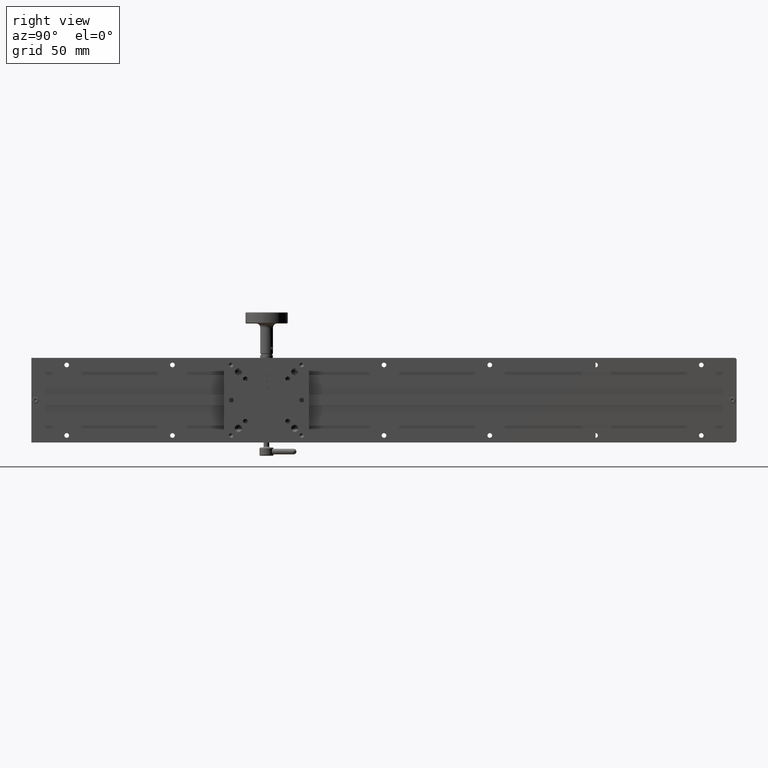
[diagram: clean part render]
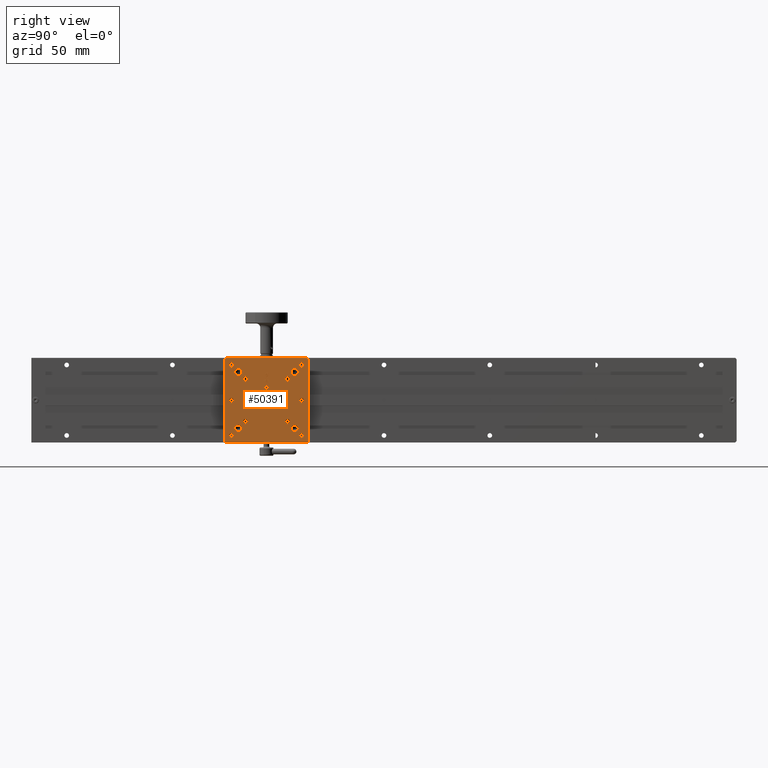
[diagram: same view with one face highlighted and labeled with its STEP entity id]
A machine part, right view. The second image highlights one B-rep face of the part: STEP entity #50391.
In plain terms, the highlighted planar face has unit normal (-1, 0, 0).
Its self-contained STEP definition (entity closure, byte-faithful):
#332 = VERTEX_POINT ( 'NONE', #51043 ) ;
#351 = ORIENTED_EDGE ( 'NONE', *, *, #77192, .F. ) ;
#695 = CIRCLE ( 'NONE', #92759, 2.500000000000002220 ) ;
#1653 = CARTESIAN_POINT ( 'NONE',  ( 60.00000000000055422, 189.6851296135902771, -45.00000000000157740 ) ) ;
#2625 = CARTESIAN_POINT ( 'NONE',  ( 60.00000000000054001, 199.6851296135903624, -55.00000000000152056 ) ) ;
#2754 = EDGE_CURVE ( 'NONE', #47472, #39695, #82951, .T. ) ;
#3322 = ORIENTED_EDGE ( 'NONE', *, *, #55227, .F. ) ;
#3337 = DIRECTION ( 'NONE',  ( -2.775557561562888984E-15, -1.000000000000000000, -5.551115123125777969E-15 ) ) ;
#3385 = DIRECTION ( 'NONE',  ( 0.000000000000000000, -1.000000000000000000, -4.205390244792298683E-15 ) ) ;
#4104 = CARTESIAN_POINT ( 'NONE',  ( 60.00000000000070344, 204.6851296135900213, -1.000000000001465050 ) ) ;
#4270 = EDGE_LOOP ( 'NONE', ( #84023, #80054, #75383, #46430, #78126, #21852, #28564, #5802 ) ) ;
#4526 = ORIENTED_EDGE ( 'NONE', *, *, #31403, .F. ) ;
#4704 = CARTESIAN_POINT ( 'NONE',  ( 60.00000000000054001, 151.3351296135901976, -30.00000000000180478 ) ) ;
#4714 = CARTESIAN_POINT ( 'NONE',  ( 60.00000000000054001, 199.6851296135903624, -55.00000000000152056 ) ) ;
#4756 = FACE_BOUND ( 'NONE', #33052, .T. ) ;
#4821 = EDGE_LOOP ( 'NONE', ( #52045, #21338 ) ) ;
#5269 = DIRECTION ( 'NONE',  ( 0.000000000000000000, -1.000000000000000000, -4.205390244792298683E-15 ) ) ;
#5311 = FACE_BOUND ( 'NONE', #23181, .T. ) ;
#5344 = CARTESIAN_POINT ( 'NONE',  ( 60.00000000000060396, 159.6851296135901066, -15.00000000000176748 ) ) ;
#5469 = CARTESIAN_POINT ( 'NONE',  ( 60.00000000000051159, 161.3351296135902828, -45.00000000000174083 ) ) ;
#5666 = DIRECTION ( 'NONE',  ( 1.000000000000000000, -1.443289932012660312E-15, -2.877341228894477022E-15 ) ) ;
#5726 = CARTESIAN_POINT ( 'NONE',  ( 60.00000000000059686, 152.1851296135900782, -10.00000000000181544 ) ) ;
#5802 = ORIENTED_EDGE ( 'NONE', *, *, #65491, .T. ) ;
#6255 = CARTESIAN_POINT ( 'NONE',  ( 60.00000000000061817, 149.6851296135900498, -5.000000000001826095 ) ) ;
#6748 = DIRECTION ( 'NONE',  ( 1.000000000000000000, -1.443289932012660312E-15, -2.877341228894477022E-15 ) ) ;
#7025 = VERTEX_POINT ( 'NONE', #74088 ) ;
#7111 = VECTOR ( 'NONE', #70907, 1000.000000000000000 ) ;
#7700 = DIRECTION ( 'NONE',  ( 0.000000000000000000, -1.000000000000000000, -4.205390244792298683E-15 ) ) ;
#8292 = DIRECTION ( 'NONE',  ( 0.000000000000000000, -1.000000000000000000, -5.551115123125777969E-15 ) ) ;
#8397 = CARTESIAN_POINT ( 'NONE',  ( 60.00000000000061817, 149.6851296135900498, -5.000000000001826095 ) ) ;
#8552 = CIRCLE ( 'NONE', #93511, 1.649999999999984812 ) ;
#8583 = AXIS2_PLACEMENT_3D ( 'NONE', #29400, #28859, #105854 ) ;
#8886 = EDGE_CURVE ( 'NONE', #28872, #108513, #72330, .T. ) ;
#9121 = CARTESIAN_POINT ( 'NONE',  ( 60.00000000000061817, 201.3351296135901691, -30.00000000000149214 ) ) ;
#9169 = EDGE_CURVE ( 'NONE', #27613, #51010, #86493, .T. ) ;
#9524 = CARTESIAN_POINT ( 'NONE',  ( 60.00000000000054001, 198.0351296135903851, -55.00000000000152767 ) ) ;
#9666 = LINE ( 'NONE', #77256, #10219 ) ;
#9698 = EDGE_LOOP ( 'NONE', ( #45944, #21550 ) ) ;
#10135 = EDGE_CURVE ( 'NONE', #26848, #79622, #47830, .T. ) ;
#10178 = VERTEX_POINT ( 'NONE', #39088 ) ;
#10191 = CARTESIAN_POINT ( 'NONE',  ( 60.00000000000054001, 204.6851296135903624, -59.00000000000149925 ) ) ;
#10219 = VECTOR ( 'NONE', #27365, 1000.000000000000000 ) ;
#10871 = DIRECTION ( 'NONE',  ( 1.000000000000000000, -1.443289932012660312E-15, -2.877341228894477022E-15 ) ) ;
#11073 = CARTESIAN_POINT ( 'NONE',  ( 60.00000000000045475, 145.6851296135903624, -60.00000000000184741 ) ) ;
#11079 = VERTEX_POINT ( 'NONE', #55498 ) ;
#11288 = CIRCLE ( 'NONE', #62616, 1.649999999999984812 ) ;
#11289 = VERTEX_POINT ( 'NONE', #103874 ) ;
#11560 = CARTESIAN_POINT ( 'NONE',  ( 60.00000000000064659, 191.3351296135900839, -15.00000000000155076 ) ) ;
#11866 = CIRCLE ( 'NONE', #73808, 1.649999999999984812 ) ;
#12521 = FACE_BOUND ( 'NONE', #33310, .T. ) ;
#12957 = AXIS2_PLACEMENT_3D ( 'NONE', #77608, #60971, #3337 ) ;
#13323 = DIRECTION ( 'NONE',  ( -2.775557561562888984E-15, -1.000000000000000000, -5.551115123125777969E-15 ) ) ;
#13701 = CIRCLE ( 'NONE', #31398, 2.500000000000002220 ) ;
#14086 = CARTESIAN_POINT ( 'NONE',  ( 60.00000000000066080, 194.6851296135900782, -10.00000000000155254 ) ) ;
#14139 = DIRECTION ( 'NONE',  ( 1.000000000000000000, -1.443289932012660312E-15, -2.877341228894477022E-15 ) ) ;
#14167 = PLANE ( 'NONE',  #107376 ) ;
#14186 = VECTOR ( 'NONE', #72426, 1000.000000000000000 ) ;
#14561 = VERTEX_POINT ( 'NONE', #88492 ) ;
#14645 = ORIENTED_EDGE ( 'NONE', *, *, #10135, .F. ) ;
#14692 = AXIS2_PLACEMENT_3D ( 'NONE', #21059, #55406, #72594 ) ;
#14763 = VECTOR ( 'NONE', #20161, 1000.000000000000000 ) ;
#15457 = DIRECTION ( 'NONE',  ( 1.000000000000000000, -1.443289932012660312E-15, -2.877341228894477022E-15 ) ) ;
#15689 = LINE ( 'NONE', #11073, #96466 ) ;
#15742 = EDGE_CURVE ( 'NONE', #79622, #26848, #30081, .T. ) ;
#16573 = CIRCLE ( 'NONE', #71402, 2.500000000000002220 ) ;
#17400 = DIRECTION ( 'NONE',  ( 3.055147592883359968E-15, 0.7071067811865481278, 0.7071067811865470176 ) ) ;
#17484 = CARTESIAN_POINT ( 'NONE',  ( 60.00000000000061817, 199.6851296135901919, -30.00000000000151701 ) ) ;
#17516 = EDGE_CURVE ( 'NONE', #80931, #52241, #105142, .T. ) ;
#17589 = CARTESIAN_POINT ( 'NONE',  ( 60.00000000000061817, 174.6851296135901066, -16.50000000000167333 ) ) ;
#17689 = DIRECTION ( 'NONE',  ( 1.000000000000000000, -1.443289932012660312E-15, -2.877341228894477022E-15 ) ) ;
#18004 = AXIS2_PLACEMENT_3D ( 'NONE', #2625, #79064, #36413 ) ;
#18403 = VECTOR ( 'NONE', #44803, 1000.000000000000000 ) ;
#18541 = DIRECTION ( 'NONE',  ( 1.000000000000000000, -1.443289932012660312E-15, -2.877341228894477022E-15 ) ) ;
#19169 = CARTESIAN_POINT ( 'NONE',  ( 60.00000000000061817, 199.6851296135901919, -30.00000000000151701 ) ) ;
#19368 = CARTESIAN_POINT ( 'NONE',  ( 60.00000000000063238, 173.4351296135900782, -12.00000000000167866 ) ) ;
#19602 = CARTESIAN_POINT ( 'NONE',  ( 60.00000000000060396, 154.6851296135900782, -10.00000000000179945 ) ) ;
#19799 = VERTEX_POINT ( 'NONE', #71280 ) ;
#20118 = DIRECTION ( 'NONE',  ( 0.000000000000000000, -1.000000000000000000, -5.551115123125777969E-15 ) ) ;
#20161 = DIRECTION ( 'NONE',  ( 1.014027396594448134E-15, -0.7071067811865543451, 0.7071067811865406894 ) ) ;
#20229 = ORIENTED_EDGE ( 'NONE', *, *, #94822, .F. ) ;
#20355 = VERTEX_POINT ( 'NONE', #31195 ) ;
#20458 = LINE ( 'NONE', #55350, #7111 ) ;
#20806 = FACE_BOUND ( 'NONE', #84547, .T. ) ;
#20939 = DIRECTION ( 'NONE',  ( 1.000000000000000000, -1.443289932012660312E-15, -2.877341228894477022E-15 ) ) ;
#21013 = ORIENTED_EDGE ( 'NONE', *, *, #105586, .F. ) ;
#21059 = CARTESIAN_POINT ( 'NONE',  ( 60.00000000000046896, 149.6851296135903340, -55.00000000000182609 ) ) ;
#21160 = EDGE_CURVE ( 'NONE', #332, #11079, #25539, .T. ) ;
#21338 = ORIENTED_EDGE ( 'NONE', *, *, #43293, .F. ) ;
#21400 = CARTESIAN_POINT ( 'NONE',  ( 60.00000000000060396, 161.3351296135900839, -15.00000000000173728 ) ) ;
#21550 = ORIENTED_EDGE ( 'NONE', *, *, #48062, .F. ) ;
#21613 = CARTESIAN_POINT ( 'NONE',  ( 60.00000000000061817, 151.3351296135900270, -5.000000000001796785 ) ) ;
#21852 = ORIENTED_EDGE ( 'NONE', *, *, #47295, .T. ) ;
#22305 = VERTEX_POINT ( 'NONE', #21400 ) ;
#22454 = EDGE_CURVE ( 'NONE', #22305, #11289, #27271, .T. ) ;
#22456 = FACE_BOUND ( 'NONE', #45455, .T. ) ;
#22655 = AXIS2_PLACEMENT_3D ( 'NONE', #81566, #5666, #98719 ) ;
#22924 = DIRECTION ( 'NONE',  ( 1.000000000000000000, -1.443289932012660312E-15, -2.877341228894477022E-15 ) ) ;
#23001 = LINE ( 'NONE', #90618, #26105 ) ;
#23181 = EDGE_LOOP ( 'NONE', ( #51226, #89708 ) ) ;
#23273 = CARTESIAN_POINT ( 'NONE',  ( 60.00000000000062528, 144.6851296135900498, -1.000000000001870948 ) ) ;
#23449 = AXIS2_PLACEMENT_3D ( 'NONE', #77521, #94692, #8292 ) ;
#23585 = EDGE_CURVE ( 'NONE', #51544, #63528, #32734, .T. ) ;
#24172 = CARTESIAN_POINT ( 'NONE',  ( 60.00000000000046896, 151.3351296135903397, -55.00000000000179767 ) ) ;
#24742 = DIRECTION ( 'NONE',  ( 1.000000000000000000, -1.443289932012660312E-15, -2.877341228894477022E-15 ) ) ;
#25162 = EDGE_CURVE ( 'NONE', #29156, #63765, #98240, .T. ) ;
#25329 = EDGE_LOOP ( 'NONE', ( #93508, #58070 ) ) ;
#25539 = CIRCLE ( 'NONE', #108755, 1.250000000000001110 ) ;
#26105 = VECTOR ( 'NONE', #40179, 1000.000000000000000 ) ;
#26339 = ORIENTED_EDGE ( 'NONE', *, *, #22454, .F. ) ;
#26657 = EDGE_CURVE ( 'NONE', #19799, #70435, #42687, .T. ) ;
#26827 = EDGE_CURVE ( 'NONE', #65114, #10178, #49794, .T. ) ;
#26848 = VERTEX_POINT ( 'NONE', #70414 ) ;
#27271 = CIRCLE ( 'NONE', #36146, 1.649999999999984812 ) ;
#27365 = DIRECTION ( 'NONE',  ( -2.877341228894468739E-15, 6.171113181712969277E-15, -1.000000000000000000 ) ) ;
#27395 = DIRECTION ( 'NONE',  ( 0.000000000000000000, -1.000000000000000000, -6.308085367188447236E-15 ) ) ;
#27613 = VERTEX_POINT ( 'NONE', #76419 ) ;
#27759 = DIRECTION ( 'NONE',  ( 1.000000000000000000, -1.443289932012660312E-15, -2.877341228894477022E-15 ) ) ;
#27761 = CARTESIAN_POINT ( 'NONE',  ( 60.00000000000055422, 191.3351296135902544, -45.00000000000155609 ) ) ;
#28032 = CARTESIAN_POINT ( 'NONE',  ( 60.00000000000060396, 174.6851296135901350, -21.00000000000166978 ) ) ;
#28203 = CIRCLE ( 'NONE', #75996, 1.649999999999984812 ) ;
#28564 = ORIENTED_EDGE ( 'NONE', *, *, #79837, .F. ) ;
#28567 = DIRECTION ( 'NONE',  ( 1.000000000000000000, -1.443289932012660312E-15, -2.877341228894477022E-15 ) ) ;
#28859 = DIRECTION ( 'NONE',  ( 1.000000000000000000, -1.443289932012660312E-15, -2.877341228894477022E-15 ) ) ;
#28872 = VERTEX_POINT ( 'NONE', #93320 ) ;
#29156 = VERTEX_POINT ( 'NONE', #106551 ) ;
#29333 = DIRECTION ( 'NONE',  ( 1.000000000000000000, -1.443289932012660312E-15, -2.877341228894477022E-15 ) ) ;
#29400 = CARTESIAN_POINT ( 'NONE',  ( 60.00000000000068212, 199.6851296135900213, -5.000000000001513456 ) ) ;
#29584 = AXIS2_PLACEMENT_3D ( 'NONE', #81737, #28567, #88400 ) ;
#30081 = CIRCLE ( 'NONE', #47717, 1.649999999999984812 ) ;
#30232 = DIRECTION ( 'NONE',  ( 1.443289932012703503E-15, 1.000000000000000000, 6.171113181712962177E-15 ) ) ;
#30423 = VERTEX_POINT ( 'NONE', #9524 ) ;
#30776 = FACE_BOUND ( 'NONE', #4821, .T. ) ;
#30853 = CARTESIAN_POINT ( 'NONE',  ( 60.00000000000055422, 188.0351296135902714, -45.00000000000158451 ) ) ;
#31195 = CARTESIAN_POINT ( 'NONE',  ( 60.00000000000045475, 145.6851296135903624, -60.00000000000185452 ) ) ;
#31398 = AXIS2_PLACEMENT_3D ( 'NONE', #60615, #60060, #85580 ) ;
#31403 = EDGE_CURVE ( 'NONE', #11079, #332, #72978, .T. ) ;
#31764 = CIRCLE ( 'NONE', #47758, 1.649999999999984812 ) ;
#32734 = CIRCLE ( 'NONE', #87554, 1.649999999999984812 ) ;
#33052 = EDGE_LOOP ( 'NONE', ( #21013, #34305 ) ) ;
#33310 = EDGE_LOOP ( 'NONE', ( #36547, #76351 ) ) ;
#33465 = DIRECTION ( 'NONE',  ( 1.000000000000000000, -1.443289932012660312E-15, -2.877341228894477022E-15 ) ) ;
#33606 = EDGE_LOOP ( 'NONE', ( #351, #68047 ) ) ;
#34265 = CARTESIAN_POINT ( 'NONE',  ( 60.00000000000060396, 173.4351296135901350, -21.00000000000167688 ) ) ;
#34305 = ORIENTED_EDGE ( 'NONE', *, *, #45479, .F. ) ;
#34311 = CARTESIAN_POINT ( 'NONE',  ( 60.00000000000049027, 154.6851296135903340, -50.00000000000179767 ) ) ;
#34483 = EDGE_CURVE ( 'NONE', #63117, #20355, #15689, .T. ) ;
#34766 = VERTEX_POINT ( 'NONE', #19368 ) ;
#35702 = CARTESIAN_POINT ( 'NONE',  ( 60.00000000000071054, 203.6851296135900213, -1.491862189340054101E-12 ) ) ;
#36146 = AXIS2_PLACEMENT_3D ( 'NONE', #5344, #39133, #98411 ) ;
#36413 = DIRECTION ( 'NONE',  ( 0.000000000000000000, -1.000000000000000000, -4.205390244792298683E-15 ) ) ;
#36547 = ORIENTED_EDGE ( 'NONE', *, *, #25162, .F. ) ;
#36617 = CARTESIAN_POINT ( 'NONE',  ( 60.00000000000049027, 154.6851296135903340, -50.00000000000179767 ) ) ;
#36752 = DIRECTION ( 'NONE',  ( 1.000000000000000000, -1.443289932012660312E-15, -2.877341228894477022E-15 ) ) ;
#37135 = CARTESIAN_POINT ( 'NONE',  ( 60.00000000000065370, 192.1851296135900782, -10.00000000000156852 ) ) ;
#37795 = CIRCLE ( 'NONE', #60783, 1.250000000000001110 ) ;
#38551 = DIRECTION ( 'NONE',  ( -1.000000000000000000, 1.443289932012685753E-15, 2.877341228894477022E-15 ) ) ;
#38893 = VERTEX_POINT ( 'NONE', #100245 ) ;
#38976 = AXIS2_PLACEMENT_3D ( 'NONE', #19169, #10871, #72333 ) ;
#39088 = CARTESIAN_POINT ( 'NONE',  ( 60.00000000000049738, 157.1851296135903340, -50.00000000000176215 ) ) ;
#39133 = DIRECTION ( 'NONE',  ( 1.000000000000000000, -1.443289932012660312E-15, -2.877341228894477022E-15 ) ) ;
#39207 = AXIS2_PLACEMENT_3D ( 'NONE', #36617, #89239, #13323 ) ;
#39443 = DIRECTION ( 'NONE',  ( -2.775557561562888984E-15, -1.000000000000000000, -6.245004513516500018E-15 ) ) ;
#39695 = VERTEX_POINT ( 'NONE', #42047 ) ;
#39764 = VERTEX_POINT ( 'NONE', #101890 ) ;
#39914 = ORIENTED_EDGE ( 'NONE', *, *, #2754, .F. ) ;
#40179 = DIRECTION ( 'NONE',  ( -2.877341228894468739E-15, 6.171113181712969277E-15, -1.000000000000000000 ) ) ;
#40215 = EDGE_LOOP ( 'NONE', ( #60105, #78672 ) ) ;
#41072 = CARTESIAN_POINT ( 'NONE',  ( 60.00000000000060396, 154.6851296135900782, -10.00000000000179945 ) ) ;
#41240 = ORIENTED_EDGE ( 'NONE', *, *, #90527, .F. ) ;
#41607 = EDGE_LOOP ( 'NONE', ( #39914, #49370 ) ) ;
#41767 = CARTESIAN_POINT ( 'NONE',  ( 60.00000000000054712, 194.6851296135903056, -50.00000000000155609 ) ) ;
#42011 = EDGE_CURVE ( 'NONE', #63765, #29156, #74139, .T. ) ;
#42047 = CARTESIAN_POINT ( 'NONE',  ( 60.00000000000061107, 157.1851296135900782, -10.00000000000176392 ) ) ;
#42687 = CIRCLE ( 'NONE', #83419, 1.250000000000001110 ) ;
#43293 = EDGE_CURVE ( 'NONE', #108513, #28872, #11866, .T. ) ;
#43858 = CIRCLE ( 'NONE', #84520, 1.649999999999984812 ) ;
#44047 = EDGE_CURVE ( 'NONE', #82941, #55685, #77365, .T. ) ;
#44803 = DIRECTION ( 'NONE',  ( -1.443289932012703503E-15, -1.000000000000000000, -6.171113181712962177E-15 ) ) ;
#45455 = EDGE_LOOP ( 'NONE', ( #46512, #82850 ) ) ;
#45479 = EDGE_CURVE ( 'NONE', #89599, #34766, #70321, .T. ) ;
#45630 = DIRECTION ( 'NONE',  ( 1.000000000000000000, -1.443289932012660312E-15, -2.877341228894477022E-15 ) ) ;
#45812 = AXIS2_PLACEMENT_3D ( 'NONE', #8397, #50506, #58804 ) ;
#45944 = ORIENTED_EDGE ( 'NONE', *, *, #26827, .F. ) ;
#45955 = CIRCLE ( 'NONE', #88439, 1.250000000000001110 ) ;
#46186 = DIRECTION ( 'NONE',  ( -2.775557561562888984E-15, -1.000000000000000000, -6.245004513516500018E-15 ) ) ;
#46393 = VERTEX_POINT ( 'NONE', #69196 ) ;
#46430 = ORIENTED_EDGE ( 'NONE', *, *, #34483, .T. ) ;
#46440 = DIRECTION ( 'NONE',  ( 0.000000000000000000, -1.000000000000000000, -6.308085367188447236E-15 ) ) ;
#46512 = ORIENTED_EDGE ( 'NONE', *, *, #69334, .F. ) ;
#47295 = EDGE_CURVE ( 'NONE', #39764, #7025, #68917, .T. ) ;
#47472 = VERTEX_POINT ( 'NONE', #5726 ) ;
#47535 = DIRECTION ( 'NONE',  ( 1.000000000000000000, -1.443289932012660312E-15, -2.877341228894477022E-15 ) ) ;
#47717 = AXIS2_PLACEMENT_3D ( 'NONE', #17484, #68444, #76236 ) ;
#47758 = AXIS2_PLACEMENT_3D ( 'NONE', #71528, #27759, #3385 ) ;
#47830 = CIRCLE ( 'NONE', #38976, 1.649999999999984812 ) ;
#47958 = FACE_BOUND ( 'NONE', #25329, .T. ) ;
#48062 = EDGE_CURVE ( 'NONE', #10178, #65114, #57763, .T. ) ;
#48423 = DIRECTION ( 'NONE',  ( 1.000000000000000000, -1.443289932012660312E-15, -2.877341228894477022E-15 ) ) ;
#49370 = ORIENTED_EDGE ( 'NONE', *, *, #107113, .F. ) ;
#49555 = DIRECTION ( 'NONE',  ( 0.000000000000000000, -1.000000000000000000, -6.308085367188447236E-15 ) ) ;
#49745 = DIRECTION ( 'NONE',  ( 1.000000000000000000, -1.443289932012660312E-15, -2.877341228894477022E-15 ) ) ;
#49794 = CIRCLE ( 'NONE', #39207, 2.500000000000002220 ) ;
#49884 = CIRCLE ( 'NONE', #69345, 1.649999999999984812 ) ;
#50053 = CARTESIAN_POINT ( 'NONE',  ( 60.00000000000063238, 174.6851296135900782, -12.00000000000167333 ) ) ;
#50300 = ORIENTED_EDGE ( 'NONE', *, *, #88389, .F. ) ;
#50391 = ADVANCED_FACE ( 'NONE', ( #88427, #81211, #12521, #5311, #20806, #80661, #47958, #88981, #30776, #64573, #73983, #4756, #54609, #82305, #22456, #71805, #90076, #63483 ), #14167, .F. ) ;
#50506 = DIRECTION ( 'NONE',  ( 1.000000000000000000, -1.443289932012660312E-15, -2.877341228894477022E-15 ) ) ;
#51010 = VERTEX_POINT ( 'NONE', #75611 ) ;
#51043 = CARTESIAN_POINT ( 'NONE',  ( 60.00000000000061817, 175.9351296135901066, -16.50000000000165912 ) ) ;
#51226 = ORIENTED_EDGE ( 'NONE', *, *, #9169, .F. ) ;
#51490 = DIRECTION ( 'NONE',  ( -2.775557561562888984E-15, -1.000000000000000000, -5.551115123125777969E-15 ) ) ;
#51544 = VERTEX_POINT ( 'NONE', #27761 ) ;
#52045 = ORIENTED_EDGE ( 'NONE', *, *, #8886, .F. ) ;
#52241 = VERTEX_POINT ( 'NONE', #23273 ) ;
#52273 = AXIS2_PLACEMENT_3D ( 'NONE', #6255, #98227, #91540 ) ;
#52626 = DIRECTION ( 'NONE',  ( -1.014027396594479886E-15, 0.7071067811865470176, -0.7071067811865481278 ) ) ;
#52639 = ORIENTED_EDGE ( 'NONE', *, *, #105564, .F. ) ;
#52875 = CARTESIAN_POINT ( 'NONE',  ( 60.00000000000048317, 152.1851296135903340, -50.00000000000181188 ) ) ;
#53419 = EDGE_CURVE ( 'NONE', #11289, #22305, #43858, .T. ) ;
#54201 = CARTESIAN_POINT ( 'NONE',  ( 60.00000000000051159, 159.6851296135903056, -45.00000000000176925 ) ) ;
#54259 = CARTESIAN_POINT ( 'NONE',  ( 60.00000000000054001, 149.6851296135902203, -30.00000000000182609 ) ) ;
#54609 = FACE_OUTER_BOUND ( 'NONE', #4270, .T. ) ;
#55227 = EDGE_CURVE ( 'NONE', #14561, #59070, #97020, .T. ) ;
#55350 = CARTESIAN_POINT ( 'NONE',  ( 60.00000000000054001, 204.6851296135903908, -60.00000000000149214 ) ) ;
#55406 = DIRECTION ( 'NONE',  ( 1.000000000000000000, -1.443289932012660312E-15, -2.877341228894477022E-15 ) ) ;
#55498 = CARTESIAN_POINT ( 'NONE',  ( 60.00000000000061817, 173.4351296135901066, -16.50000000000168043 ) ) ;
#55685 = VERTEX_POINT ( 'NONE', #66006 ) ;
#56373 = VERTEX_POINT ( 'NONE', #37135 ) ;
#57763 = CIRCLE ( 'NONE', #84292, 2.500000000000002220 ) ;
#58070 = ORIENTED_EDGE ( 'NONE', *, *, #44047, .F. ) ;
#58804 = DIRECTION ( 'NONE',  ( 0.000000000000000000, -1.000000000000000000, -6.308085367188447236E-15 ) ) ;
#59070 = VERTEX_POINT ( 'NONE', #4704 ) ;
#59091 = DIRECTION ( 'NONE',  ( 0.000000000000000000, -1.000000000000000000, -4.205390244792298683E-15 ) ) ;
#59901 = AXIS2_PLACEMENT_3D ( 'NONE', #91668, #14139, #49555 ) ;
#60060 = DIRECTION ( 'NONE',  ( 1.000000000000000000, -1.443289932012660312E-15, -2.877341228894477022E-15 ) ) ;
#60105 = ORIENTED_EDGE ( 'NONE', *, *, #99056, .F. ) ;
#60615 = CARTESIAN_POINT ( 'NONE',  ( 60.00000000000066080, 194.6851296135900782, -10.00000000000155254 ) ) ;
#60706 = CIRCLE ( 'NONE', #12957, 2.500000000000002220 ) ;
#60783 = AXIS2_PLACEMENT_3D ( 'NONE', #50053, #48423, #65582 ) ;
#60971 = DIRECTION ( 'NONE',  ( 1.000000000000000000, -1.443289932012660312E-15, -2.877341228894477022E-15 ) ) ;
#61791 = ORIENTED_EDGE ( 'NONE', *, *, #21160, .F. ) ;
#62616 = AXIS2_PLACEMENT_3D ( 'NONE', #54201, #47535, #88006 ) ;
#63117 = VERTEX_POINT ( 'NONE', #69695 ) ;
#63483 = FACE_BOUND ( 'NONE', #9698, .T. ) ;
#63528 = VERTEX_POINT ( 'NONE', #30853 ) ;
#63765 = VERTEX_POINT ( 'NONE', #21613 ) ;
#64573 = FACE_BOUND ( 'NONE', #33606, .T. ) ;
#65114 = VERTEX_POINT ( 'NONE', #52875 ) ;
#65139 = VERTEX_POINT ( 'NONE', #35702 ) ;
#65491 = EDGE_CURVE ( 'NONE', #93657, #65139, #88316, .T. ) ;
#65582 = DIRECTION ( 'NONE',  ( 0.000000000000000000, -1.000000000000000000, -5.551115123125777969E-15 ) ) ;
#66006 = CARTESIAN_POINT ( 'NONE',  ( 60.00000000000051159, 158.0351296135902999, -45.00000000000177636 ) ) ;
#66078 = CARTESIAN_POINT ( 'NONE',  ( 60.00000000000063238, 145.6851296135900213, -1.849215225391276363E-12 ) ) ;
#66300 = CARTESIAN_POINT ( 'NONE',  ( 60.00000000000064659, 189.6851296135901066, -15.00000000000157918 ) ) ;
#66502 = CARTESIAN_POINT ( 'NONE',  ( 60.00000000000054001, 192.1851296135903056, -50.00000000000157030 ) ) ;
#66839 = DIRECTION ( 'NONE',  ( 1.000000000000000000, -1.443289932012660312E-15, -2.877341228894477022E-15 ) ) ;
#67515 = CARTESIAN_POINT ( 'NONE',  ( 60.00000000000055422, 189.6851296135902771, -45.00000000000157740 ) ) ;
#67950 = DIRECTION ( 'NONE',  ( 0.000000000000000000, -1.000000000000000000, -6.308085367188447236E-15 ) ) ;
#68047 = ORIENTED_EDGE ( 'NONE', *, *, #26657, .F. ) ;
#68444 = DIRECTION ( 'NONE',  ( 1.000000000000000000, -1.443289932012660312E-15, -2.877341228894477022E-15 ) ) ;
#68787 = AXIS2_PLACEMENT_3D ( 'NONE', #19602, #45630, #46186 ) ;
#68917 = LINE ( 'NONE', #10191, #102044 ) ;
#69196 = CARTESIAN_POINT ( 'NONE',  ( 60.00000000000054001, 201.3351296135903397, -55.00000000000149214 ) ) ;
#69334 = EDGE_CURVE ( 'NONE', #86085, #94904, #60706, .T. ) ;
#69345 = AXIS2_PLACEMENT_3D ( 'NONE', #67515, #15457, #7700 ) ;
#69695 = CARTESIAN_POINT ( 'NONE',  ( 60.00000000000045475, 144.6851296135903624, -59.00000000000185452 ) ) ;
#69873 = DIRECTION ( 'NONE',  ( 0.000000000000000000, -1.000000000000000000, -5.551115123125777969E-15 ) ) ;
#70321 = CIRCLE ( 'NONE', #84473, 1.250000000000001110 ) ;
#70414 = CARTESIAN_POINT ( 'NONE',  ( 60.00000000000061817, 198.0351296135902146, -30.00000000000152767 ) ) ;
#70435 = VERTEX_POINT ( 'NONE', #34265 ) ;
#70907 = DIRECTION ( 'NONE',  ( -1.443289932012703503E-15, -1.000000000000000000, -6.171113181712962177E-15 ) ) ;
#71145 = ORIENTED_EDGE ( 'NONE', *, *, #15742, .F. ) ;
#71280 = CARTESIAN_POINT ( 'NONE',  ( 60.00000000000060396, 175.9351296135901350, -21.00000000000165556 ) ) ;
#71395 = CARTESIAN_POINT ( 'NONE',  ( 60.00000000000060396, 159.6851296135901066, -15.00000000000176748 ) ) ;
#71402 = AXIS2_PLACEMENT_3D ( 'NONE', #14086, #22924, #99936 ) ;
#71528 = CARTESIAN_POINT ( 'NONE',  ( 60.00000000000046896, 149.6851296135903340, -55.00000000000182609 ) ) ;
#71805 = FACE_BOUND ( 'NONE', #92831, .T. ) ;
#71884 = CARTESIAN_POINT ( 'NONE',  ( 60.00000000000063238, 145.6851296135900213, -1.849215225391276363E-12 ) ) ;
#72151 = EDGE_LOOP ( 'NONE', ( #4526, #61791 ) ) ;
#72330 = CIRCLE ( 'NONE', #59901, 1.649999999999984812 ) ;
#72333 = DIRECTION ( 'NONE',  ( 0.000000000000000000, -1.000000000000000000, -6.308085367188447236E-15 ) ) ;
#72426 = DIRECTION ( 'NONE',  ( -3.055147592883373773E-15, -0.7071067811865383579, -0.7071067811865567876 ) ) ;
#72594 = DIRECTION ( 'NONE',  ( 0.000000000000000000, -1.000000000000000000, -4.205390244792298683E-15 ) ) ;
#72647 = EDGE_CURVE ( 'NONE', #30423, #46393, #8552, .T. ) ;
#72750 = CARTESIAN_POINT ( 'NONE',  ( 60.00000000000063238, 174.6851296135900782, -12.00000000000167333 ) ) ;
#72978 = CIRCLE ( 'NONE', #23449, 1.250000000000001110 ) ;
#73288 = EDGE_LOOP ( 'NONE', ( #41240, #98962 ) ) ;
#73808 = AXIS2_PLACEMENT_3D ( 'NONE', #66300, #66839, #67950 ) ;
#73983 = FACE_BOUND ( 'NONE', #72151, .T. ) ;
#74088 = CARTESIAN_POINT ( 'NONE',  ( 60.00000000000054001, 204.6851296135903624, -59.00000000000149925 ) ) ;
#74139 = CIRCLE ( 'NONE', #45812, 1.649999999999984812 ) ;
#74853 = CARTESIAN_POINT ( 'NONE',  ( 60.00000000000070344, 204.6851296135900213, -1.000000000001478817 ) ) ;
#75383 = ORIENTED_EDGE ( 'NONE', *, *, #79362, .T. ) ;
#75611 = CARTESIAN_POINT ( 'NONE',  ( 60.00000000000068212, 201.3351296135900270, -5.000000000001484146 ) ) ;
#75996 = AXIS2_PLACEMENT_3D ( 'NONE', #76745, #18541, #27395 ) ;
#76236 = DIRECTION ( 'NONE',  ( 0.000000000000000000, -1.000000000000000000, -6.308085367188447236E-15 ) ) ;
#76351 = ORIENTED_EDGE ( 'NONE', *, *, #42011, .F. ) ;
#76419 = CARTESIAN_POINT ( 'NONE',  ( 60.00000000000068212, 198.0351296135900441, -5.000000000001524114 ) ) ;
#76745 = CARTESIAN_POINT ( 'NONE',  ( 60.00000000000068212, 199.6851296135900213, -5.000000000001513456 ) ) ;
#77192 = EDGE_CURVE ( 'NONE', #70435, #19799, #45955, .T. ) ;
#77256 = CARTESIAN_POINT ( 'NONE',  ( 60.00000000000054001, 204.6851296135903908, -60.00000000000149214 ) ) ;
#77365 = CIRCLE ( 'NONE', #29584, 1.649999999999984812 ) ;
#77521 = CARTESIAN_POINT ( 'NONE',  ( 60.00000000000061817, 174.6851296135901066, -16.50000000000167333 ) ) ;
#77608 = CARTESIAN_POINT ( 'NONE',  ( 60.00000000000054712, 194.6851296135903056, -50.00000000000155609 ) ) ;
#78126 = ORIENTED_EDGE ( 'NONE', *, *, #94846, .F. ) ;
#78672 = ORIENTED_EDGE ( 'NONE', *, *, #23585, .F. ) ;
#79064 = DIRECTION ( 'NONE',  ( 1.000000000000000000, -1.443289932012660312E-15, -2.877341228894477022E-15 ) ) ;
#79205 = ORIENTED_EDGE ( 'NONE', *, *, #53419, .F. ) ;
#79362 = EDGE_CURVE ( 'NONE', #52241, #63117, #23001, .T. ) ;
#79622 = VERTEX_POINT ( 'NONE', #9121 ) ;
#79711 = AXIS2_PLACEMENT_3D ( 'NONE', #54259, #29333, #87530 ) ;
#79823 = EDGE_CURVE ( 'NONE', #38893, #56373, #13701, .T. ) ;
#79837 = EDGE_CURVE ( 'NONE', #93657, #7025, #9666, .T. ) ;
#80054 = ORIENTED_EDGE ( 'NONE', *, *, #17516, .T. ) ;
#80661 = FACE_BOUND ( 'NONE', #40215, .T. ) ;
#80909 = CARTESIAN_POINT ( 'NONE',  ( 60.00000000000060396, 174.6851296135901350, -21.00000000000166978 ) ) ;
#80931 = VERTEX_POINT ( 'NONE', #66078 ) ;
#81211 = FACE_BOUND ( 'NONE', #73288, .T. ) ;
#81465 = CIRCLE ( 'NONE', #79711, 1.649999999999984812 ) ;
#81566 = CARTESIAN_POINT ( 'NONE',  ( 60.00000000000054001, 149.6851296135902203, -30.00000000000182609 ) ) ;
#81737 = CARTESIAN_POINT ( 'NONE',  ( 60.00000000000051159, 159.6851296135903056, -45.00000000000176925 ) ) ;
#82305 = FACE_BOUND ( 'NONE', #101518, .T. ) ;
#82850 = ORIENTED_EDGE ( 'NONE', *, *, #102347, .F. ) ;
#82941 = VERTEX_POINT ( 'NONE', #5469 ) ;
#82951 = CIRCLE ( 'NONE', #68787, 2.500000000000002220 ) ;
#83398 = VERTEX_POINT ( 'NONE', #100161 ) ;
#83419 = AXIS2_PLACEMENT_3D ( 'NONE', #80909, #97543, #69873 ) ;
#84023 = ORIENTED_EDGE ( 'NONE', *, *, #107825, .T. ) ;
#84292 = AXIS2_PLACEMENT_3D ( 'NONE', #34311, #17689, #51490 ) ;
#84473 = AXIS2_PLACEMENT_3D ( 'NONE', #72750, #36752, #20118 ) ;
#84520 = AXIS2_PLACEMENT_3D ( 'NONE', #71395, #20939, #46440 ) ;
#84547 = EDGE_LOOP ( 'NONE', ( #14645, #71145 ) ) ;
#85212 = CARTESIAN_POINT ( 'NONE',  ( 60.00000000000063238, 175.9351296135900782, -12.00000000000165556 ) ) ;
#85580 = DIRECTION ( 'NONE',  ( -2.775557561562888984E-15, -1.000000000000000000, -6.245004513516500018E-15 ) ) ;
#86085 = VERTEX_POINT ( 'NONE', #66502 ) ;
#86493 = CIRCLE ( 'NONE', #8583, 1.649999999999984812 ) ;
#87218 = ORIENTED_EDGE ( 'NONE', *, *, #72647, .F. ) ;
#87530 = DIRECTION ( 'NONE',  ( 0.000000000000000000, -1.000000000000000000, -6.308085367188447236E-15 ) ) ;
#87554 = AXIS2_PLACEMENT_3D ( 'NONE', #1653, #24742, #59091 ) ;
#88006 = DIRECTION ( 'NONE',  ( 0.000000000000000000, -1.000000000000000000, -4.205390244792298683E-15 ) ) ;
#88284 = EDGE_LOOP ( 'NONE', ( #79205, #26339 ) ) ;
#88316 = LINE ( 'NONE', #4104, #14763 ) ;
#88387 = DIRECTION ( 'NONE',  ( 1.000000000000000000, -1.443289932012660312E-15, -2.877341228894477022E-15 ) ) ;
#88389 = EDGE_CURVE ( 'NONE', #46393, #30423, #99390, .T. ) ;
#88400 = DIRECTION ( 'NONE',  ( 0.000000000000000000, -1.000000000000000000, -4.205390244792298683E-15 ) ) ;
#88427 = FACE_BOUND ( 'NONE', #96005, .T. ) ;
#88439 = AXIS2_PLACEMENT_3D ( 'NONE', #28032, #95646, #104507 ) ;
#88492 = CARTESIAN_POINT ( 'NONE',  ( 60.00000000000054001, 148.0351296135902146, -30.00000000000183675 ) ) ;
#88619 = CARTESIAN_POINT ( 'NONE',  ( 60.00000000000055422, 197.1851296135903056, -50.00000000000152767 ) ) ;
#88981 = FACE_BOUND ( 'NONE', #88284, .T. ) ;
#89239 = DIRECTION ( 'NONE',  ( 1.000000000000000000, -1.443289932012660312E-15, -2.877341228894477022E-15 ) ) ;
#89259 = ORIENTED_EDGE ( 'NONE', *, *, #79823, .F. ) ;
#89599 = VERTEX_POINT ( 'NONE', #85212 ) ;
#89708 = ORIENTED_EDGE ( 'NONE', *, *, #90934, .F. ) ;
#90076 = FACE_BOUND ( 'NONE', #41607, .T. ) ;
#90527 = EDGE_CURVE ( 'NONE', #83398, #100189, #31764, .T. ) ;
#90618 = CARTESIAN_POINT ( 'NONE',  ( 60.00000000000044764, 144.6851296135903908, -60.00000000000185452 ) ) ;
#90934 = EDGE_CURVE ( 'NONE', #51010, #27613, #28203, .T. ) ;
#91540 = DIRECTION ( 'NONE',  ( 0.000000000000000000, -1.000000000000000000, -6.308085367188447236E-15 ) ) ;
#91668 = CARTESIAN_POINT ( 'NONE',  ( 60.00000000000064659, 189.6851296135901066, -15.00000000000157918 ) ) ;
#92441 = CIRCLE ( 'NONE', #96003, 2.500000000000002220 ) ;
#92759 = AXIS2_PLACEMENT_3D ( 'NONE', #41072, #6748, #39443 ) ;
#92831 = EDGE_LOOP ( 'NONE', ( #52639, #89259 ) ) ;
#93320 = CARTESIAN_POINT ( 'NONE',  ( 60.00000000000064659, 188.0351296135901293, -15.00000000000158984 ) ) ;
#93508 = ORIENTED_EDGE ( 'NONE', *, *, #108342, .F. ) ;
#93511 = AXIS2_PLACEMENT_3D ( 'NONE', #4714, #88387, #5269 ) ;
#93657 = VERTEX_POINT ( 'NONE', #74853 ) ;
#94686 = CARTESIAN_POINT ( 'NONE',  ( 60.00000000000071054, 204.6851296135899929, -1.484923295436146873E-12 ) ) ;
#94692 = DIRECTION ( 'NONE',  ( 1.000000000000000000, -1.443289932012660312E-15, -2.877341228894477022E-15 ) ) ;
#94822 = EDGE_CURVE ( 'NONE', #59070, #14561, #81465, .T. ) ;
#94846 = EDGE_CURVE ( 'NONE', #39764, #20355, #20458, .T. ) ;
#94904 = VERTEX_POINT ( 'NONE', #88619 ) ;
#95646 = DIRECTION ( 'NONE',  ( 1.000000000000000000, -1.443289932012660312E-15, -2.877341228894477022E-15 ) ) ;
#96003 = AXIS2_PLACEMENT_3D ( 'NONE', #41767, #33465, #107199 ) ;
#96005 = EDGE_LOOP ( 'NONE', ( #87218, #50300 ) ) ;
#96466 = VECTOR ( 'NONE', #52626, 1000.000000000000000 ) ;
#97020 = CIRCLE ( 'NONE', #22655, 1.649999999999984812 ) ;
#97543 = DIRECTION ( 'NONE',  ( 1.000000000000000000, -1.443289932012660312E-15, -2.877341228894477022E-15 ) ) ;
#98227 = DIRECTION ( 'NONE',  ( 1.000000000000000000, -1.443289932012660312E-15, -2.877341228894477022E-15 ) ) ;
#98240 = CIRCLE ( 'NONE', #52273, 1.649999999999984812 ) ;
#98411 = DIRECTION ( 'NONE',  ( 0.000000000000000000, -1.000000000000000000, -6.308085367188447236E-15 ) ) ;
#98719 = DIRECTION ( 'NONE',  ( 0.000000000000000000, -1.000000000000000000, -6.308085367188447236E-15 ) ) ;
#98962 = ORIENTED_EDGE ( 'NONE', *, *, #103228, .F. ) ;
#99056 = EDGE_CURVE ( 'NONE', #63528, #51544, #49884, .T. ) ;
#99390 = CIRCLE ( 'NONE', #18004, 1.649999999999984812 ) ;
#99936 = DIRECTION ( 'NONE',  ( -2.775557561562888984E-15, -1.000000000000000000, -6.245004513516500018E-15 ) ) ;
#100161 = CARTESIAN_POINT ( 'NONE',  ( 60.00000000000046896, 148.0351296135903567, -55.00000000000183320 ) ) ;
#100189 = VERTEX_POINT ( 'NONE', #24172 ) ;
#100245 = CARTESIAN_POINT ( 'NONE',  ( 60.00000000000066791, 197.1851296135900782, -10.00000000000151879 ) ) ;
#101518 = EDGE_LOOP ( 'NONE', ( #3322, #20229 ) ) ;
#101890 = CARTESIAN_POINT ( 'NONE',  ( 60.00000000000054001, 203.6851296135903908, -60.00000000000149925 ) ) ;
#102044 = VECTOR ( 'NONE', #17400, 1000.000000000000000 ) ;
#102347 = EDGE_CURVE ( 'NONE', #94904, #86085, #92441, .T. ) ;
#102353 = DIRECTION ( 'NONE',  ( 0.000000000000000000, -1.000000000000000000, -5.551115123125777969E-15 ) ) ;
#103002 = LINE ( 'NONE', #94686, #18403 ) ;
#103122 = CIRCLE ( 'NONE', #14692, 1.649999999999984812 ) ;
#103228 = EDGE_CURVE ( 'NONE', #100189, #83398, #103122, .T. ) ;
#103874 = CARTESIAN_POINT ( 'NONE',  ( 60.00000000000060396, 158.0351296135901293, -15.00000000000177813 ) ) ;
#104507 = DIRECTION ( 'NONE',  ( 0.000000000000000000, -1.000000000000000000, -5.551115123125777969E-15 ) ) ;
#105142 = LINE ( 'NONE', #71884, #14186 ) ;
#105564 = EDGE_CURVE ( 'NONE', #56373, #38893, #16573, .T. ) ;
#105586 = EDGE_CURVE ( 'NONE', #34766, #89599, #37795, .T. ) ;
#105854 = DIRECTION ( 'NONE',  ( 0.000000000000000000, -1.000000000000000000, -6.308085367188447236E-15 ) ) ;
#106551 = CARTESIAN_POINT ( 'NONE',  ( 60.00000000000061817, 148.0351296135900441, -5.000000000001836753 ) ) ;
#107113 = EDGE_CURVE ( 'NONE', #39695, #47472, #695, .T. ) ;
#107199 = DIRECTION ( 'NONE',  ( -2.775557561562888984E-15, -1.000000000000000000, -5.551115123125777969E-15 ) ) ;
#107235 = CARTESIAN_POINT ( 'NONE',  ( 60.00000000000054001, 204.6851296135903908, -60.00000000000149214 ) ) ;
#107376 = AXIS2_PLACEMENT_3D ( 'NONE', #107235, #38551, #30232 ) ;
#107825 = EDGE_CURVE ( 'NONE', #65139, #80931, #103002, .T. ) ;
#108342 = EDGE_CURVE ( 'NONE', #55685, #82941, #11288, .T. ) ;
#108513 = VERTEX_POINT ( 'NONE', #11560 ) ;
#108755 = AXIS2_PLACEMENT_3D ( 'NONE', #17589, #49745, #102353 ) ;